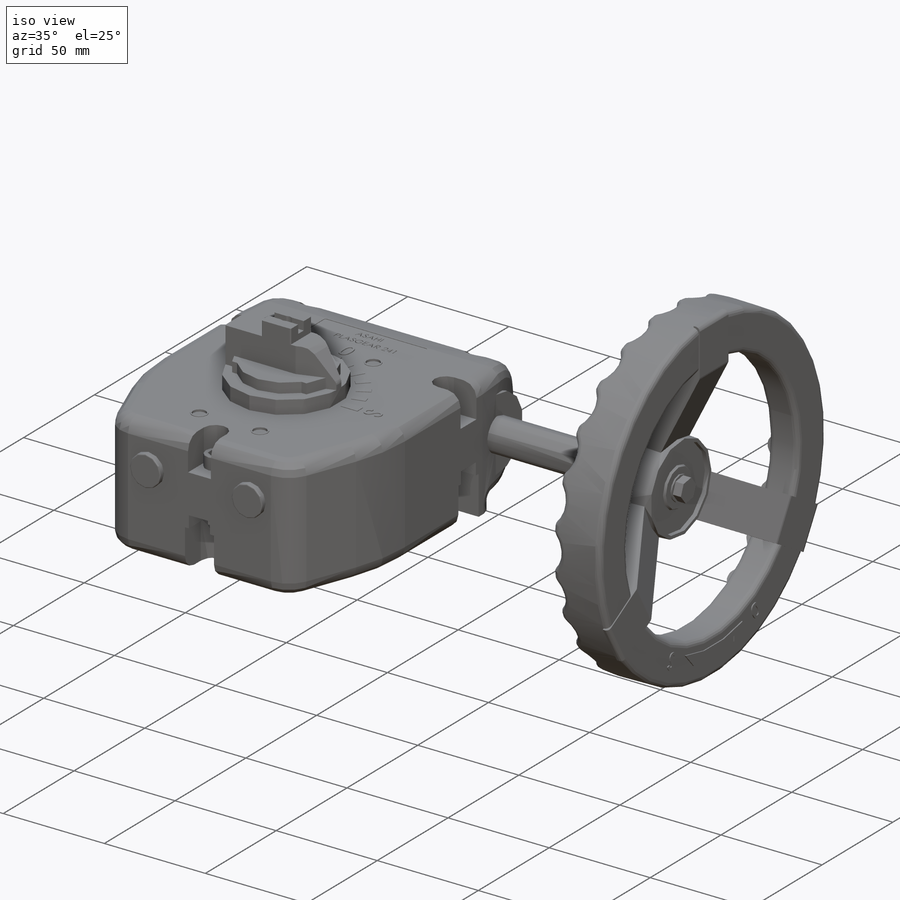
[diagram: iso view]
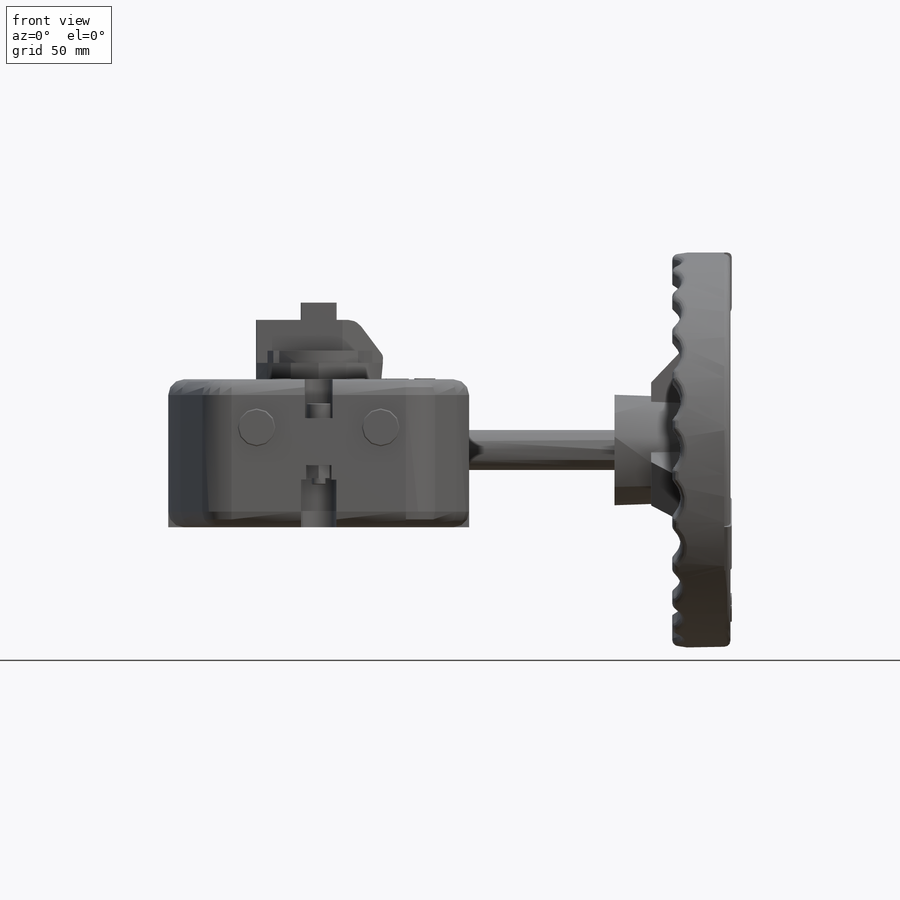
[diagram: front view]
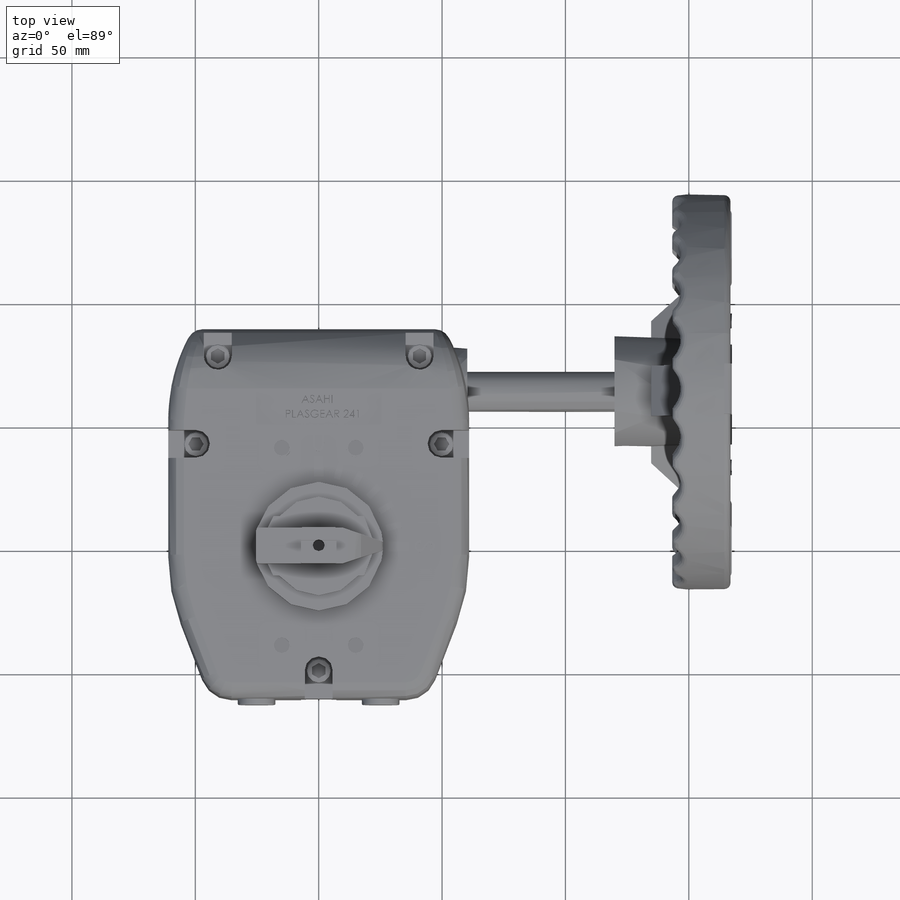
[diagram: top view]
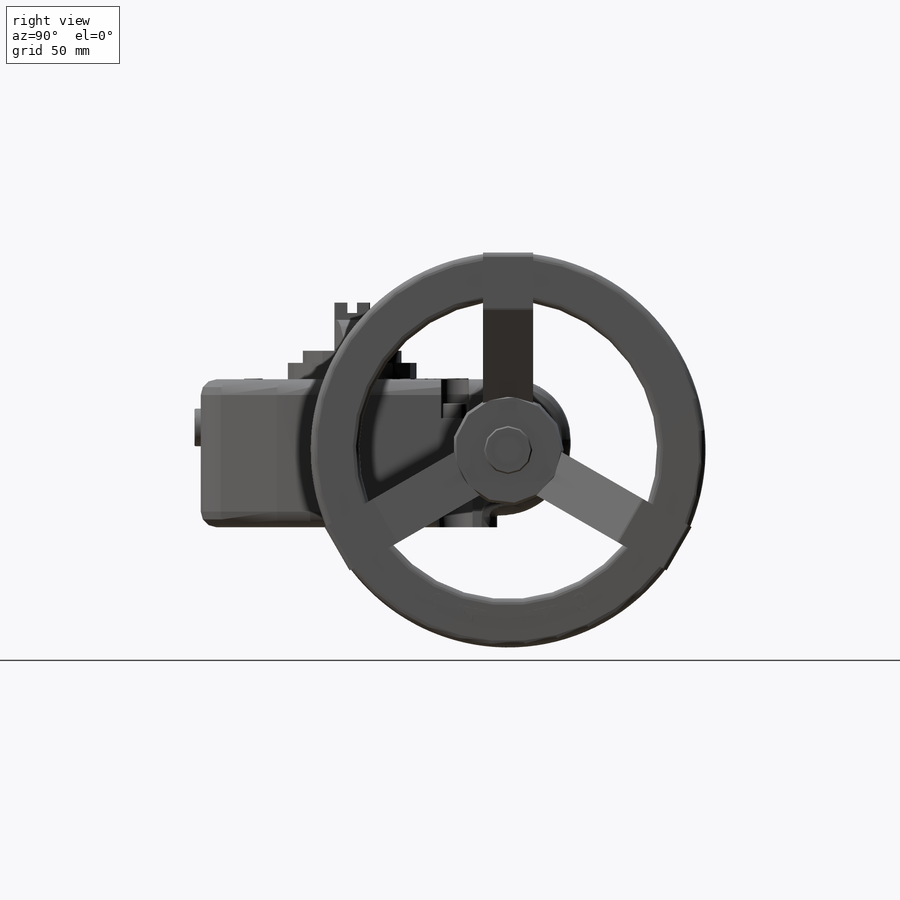
[diagram: right view]
SOLIDWORKS PART (.sldprt)
format: sldprt  version: not decoded by parser v0  size: 12,845,056 bytes
history: native  units: mm
features: sketch x47, extrude x24, cut_extrude x22, plane x8, fillet x5, chamfer x3, pattern_circular x2, material x1 (+13 scaffold rows collapsed)
feature tree (125):
  scaffold x13  (default folders/planes/origin — collapsed)
  material  "Material <not specified>"
  sketch  "Sketch1"  dims[D6=76.2mm D7=12.7mm D8=6.35mm D1=101.6mm D2=88.138mm D3=149.86mm D4=61.3664mm D5=121.92mm]
  extrude  "Extrude1"  Depth=59.944mm
  sketch  "Sketch2"  dims[D1=24.384mm]
  cut_extrude  "Cut-Extrude1"  [1 undecoded]
  plane  "Plane1"  Offset=60.198mm
  sketch  "Sketch3"  dims[D1=35.9156mm D2=25.3238mm D3=28.6512mm]
  extrude  "Extrude2"  [1 undecoded]
  plane  "Plane2"  Offset=141.224mm
  sketch  "Sketch4"  dims[D1=16.2052mm]
  extrude  "Extrude3"  [1 undecoded]
  sketch  "Sketch5"  dims[c1.D1=~9.169629mm c2.D1=45.0deg c2.D2=11.8999mm c2.D3=11.8999mm]
  sketch  "Sketch6"  dims[D1=4.9276mm]
  cut_extrude  "Cut-Extrude3"  Depth=25.4mm
  chamfer  "Chamfer1"  Distance=0.762mm Angle=45deg
  sketch  "Sketch7"  dims[D1=73.152mm D2=56.769mm D3=3.9878mm D4=3.9878mm]
  extrude  "Extrude4"  Depth=0.254mm
  sketch  "Sketch8"  dims[c1.D2=~68.236628mm c1.D1=~24.817416mm c2.D1=45.0deg c2.D2=6.35mm c2.D3=2.5654mm c2.D4=~36.562407mm c3.D4=15.0deg c3.D5=~36.343223mm c4.D5=22.5deg c4.D6=2.5654mm c4.D7=2.5654mm c5.D5=~25.698539mm c6.D5=15.0deg c6.D8=~37.12688mm c7.D8=15.0deg c7.D9=~38.173495mm c8.D9=15.0deg]
  extrude  "Extrude5"  Depth=0.254mm
  sketch  "Sketch9"  dims[D1=7.5438mm D2=29.972mm D3=80.01mm]
  extrude  "Extrude6"  Depth=0.254mm
  sketch  "Sketch10"  dims[D1=6.35mm]
  cut_extrude  "Cut-Extrude4"  Depth=1.016mm
  sketch  "Sketch11"  dims[D3=~0.79375mm D1=50.8mm D2=14.1986mm]
  cut_extrude  "Cut-Extrude5"  Depth=0.254mm
  sketch  "Sketch12"
  extrude  "Extrude7"  Depth=0.381mm
  sketch  "Sketch13"  dims[c1.D5=16.2052mm c1.D1=~9.710472mm c2.D1=45.0deg c2.D2=~9.710472mm c3.D2=45.0deg c3.D3=11.938mm c3.D4=11.938mm]
  cut_extrude  "Cut-Extrude6"  Depth=19.939mm
  sketch  "Sketch14"  dims[D1=28.575mm D3=0.508mm D2=29.7688mm]
  cut_extrude  "Cut-Extrude7"  [1 undecoded]
  sketch  "Sketch15"  dims[D1=42.418mm D2=0.254mm]
  cut_extrude  "Cut-Extrude8"  Depth=2.54mm
  sketch  "Sketch16"  dims[c1.D1=24.9555mm c1.D2=24.9555mm c2.D2=90.0deg]
  cut_extrude  "Cut-Extrude9"  Depth=35.9918mm
  sketch  "Sketch17"  dims[D1=~21.734201mm D2=~21.734201mm]
  cut_extrude  "Cut-Extrude10"  Depth=20.32mm
  sketch  "Sketch18"  dims[c1.D3=69.85mm c1.D4=102.108mm c1.D5=11.0998mm c1.D6=12.3952mm c1.D1=~35.48943mm c2.D1=45.0deg c2.D2=~35.48943mm c3.D2=45.0deg]
  cut_extrude  "Cut-Extrude11"  Depth=0.0254mm
  sketch  "Sketch19"  dims[D1=8.4836mm D2=6.731mm]
  cut_extrude  "Cut-Extrude12"  Depth=12.7mm
  sketch  "Sketch20"  dims[D1=52.1208mm]
  extrude  "Extrude8"  Depth=6.6548mm
  sketch  "Sketch21"  dims[D1=39.9796mm D2=43.942mm D3=24.0792mm]
  extrude  "Extrude9"  Depth=4.9276mm
  sketch  "Sketch22"  dims[D1=14.4526mm D2=3.556mm D3=9.652mm]
  extrude  "Extrude10"  Depth=17.399mm
  sketch  "Sketch23"  dims[D1=15.24mm D2=8.89mm]
  cut_extrude  "Cut-Extrude13"  [1 undecoded]
  fillet  "Fillet2"  Radius=2.54mm
  fillet  "Fillet3"  Radius=6.35mm
  plane  "Plane3"
  sketch  "Sketch25"  dims[D2=0.508mm D1=14.5034mm]
  extrude  "Extrude11"  Depth=7.0104mm
  sketch  "Sketch26"  dims[D1=3.937mm]
  cut_extrude  "Cut-Extrude14"  Depth=4.191mm
  sketch  "Sketch27"  dims[D1=4.7498mm]
  cut_extrude  "Cut-Extrude15"  Depth=22.225mm
  sketch  "Sketch28"  dims[D2=15.24mm D1=50.292mm]
  extrude  "Extrude12"  Depth=2.54mm
  fillet  "Fillet4"  Radius=0.508mm
  sketch  "Sketch29"  dims[c1.D2=11.303mm c1.D4=11.303mm c1.D6=11.303mm c1.D1=81.788mm c1.D3=41.6306mm c1.D5=11.2014mm c2.D6=19.1135mm c2.D7=11.2014mm]
  cut_extrude  "Cut-Extrude16"  Depth=15.7988mm
  sketch  "Sketch30"  dims[D1=14.351mm]
  cut_extrude  "Cut-Extrude17"  Depth=19.1897mm
  sketch  "Sketch31"  dims[D1=10.414mm D2=10.414mm D3=10.414mm]
  cut_extrude  "Cut-Extrude18"  Depth=5.8801mm
  sketch  "Sketch32"  dims[D1=8.89mm D2=8.89mm D3=8.89mm]
  extrude  "Extrude13"  Depth=5.1816mm
  sketch  "Sketch33"  dims[D1=5.6388mm]
  extrude  "Extrude14"  Depth=2.54mm
  chamfer  "Chamfer2"  Distance=0.254mm Angle=45deg
  sketch  "Sketch34"  dims[D1=9.7028mm D2=9.7028mm]
  extrude  "Extrude15"  Depth=5.969mm
  chamfer  "Chamfer3"  Distance=0.254mm Angle=45deg
  sketch  "Sketch35"  dims[D1=5.334mm D2=5.334mm D3=5.334mm D4=5.334mm D5=5.334mm]
  cut_extrude  "Cut-Extrude19"  Depth=4.445mm
  fillet  "Fillet5"  Radius=6.35mm
  plane  "Plane4"  Offset=166.878mm
  sketch  "Sketch36"  dims[D1=160.02mm D2=19.6088mm]
  extrude  "Extrude16"  Depth=2.54mm
  plane  "Plane5"  Offset=15.875mm
  sketch  "Sketch37"  dims[D1=42.926mm]
  extrude  "Extrude17"  Depth=31.115mm
  sketch  "Sketch38"
  cut_extrude  "Cut-Extrude20"  Depth=2.0828mm
  sketch  "Sketch39"  dims[D1=19.5072mm]
  extrude  "Extrude18"  Depth=1.016mm
  sketch  "Sketch40"  dims[D1=11.9761mm]
  extrude  "Extrude19"  Depth=0.762mm
  sketch  "Sketch41"  dims[D1=9.398mm]
  extrude  "Extrude20"  Depth=3.9878mm
  sketch  "Sketch42"  dims[D1=7.0104mm]
  extrude  "Extrude21"  Depth=21.082mm
  plane  "Plane6"  Offset=143.51mm
  sketch  "Sketch43"  dims[D1=2.54mm]
  cut_extrude  "Cut-Extrude21"  Depth=21.082mm
  pattern_circular  "CirPattern1"  Count=24 Angle=360deg
  sketch  "Sketch44"  dims[D1=6.35mm]
  extrude  "Extrude22"  Depth=12.3698mm
  fillet  "Fillet6"  Radius=2.54mm
  sketch  "Sketch45"  dims[D1=0.762mm D2=25.4mm D3=0.254mm]
  cut_extrude  "Cut-Extrude22"  Depth=0.0254mm
  plane  "Plane7"
  plane  "Plane8"
  sketch  "Sketch46"  dims[D1=1.778mm D2=2.54mm D3=0.508mm D4=0.508mm D5=1.524mm]
  extrude  "Extrude23"  Depth=20.32mm
  pattern_circular  "CirPattern2"  Count=3 Angle=360deg
  sketch  "Sketch47"
  extrude  "Extrude24"  Depth=0.508mm
  sketch  "Sketch48"
  cut_extrude  "Cut-Extrude23"  Depth=2.54mm
decode coverage: 94 of 103 modeling features carry decoded parameters
note: ~ marks probable driven/reference dimensions
note: 5 parameter values undecoded
summary: no parameter record found for 5 features
note: suppression state not decoded; provenance and decode notes live in map.json
